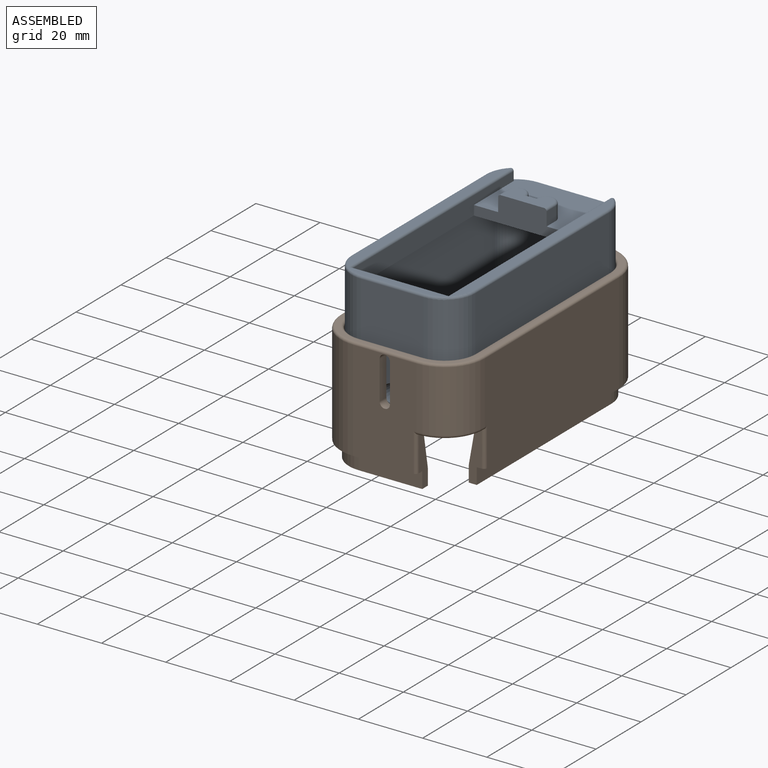
[diagram: assembled view]
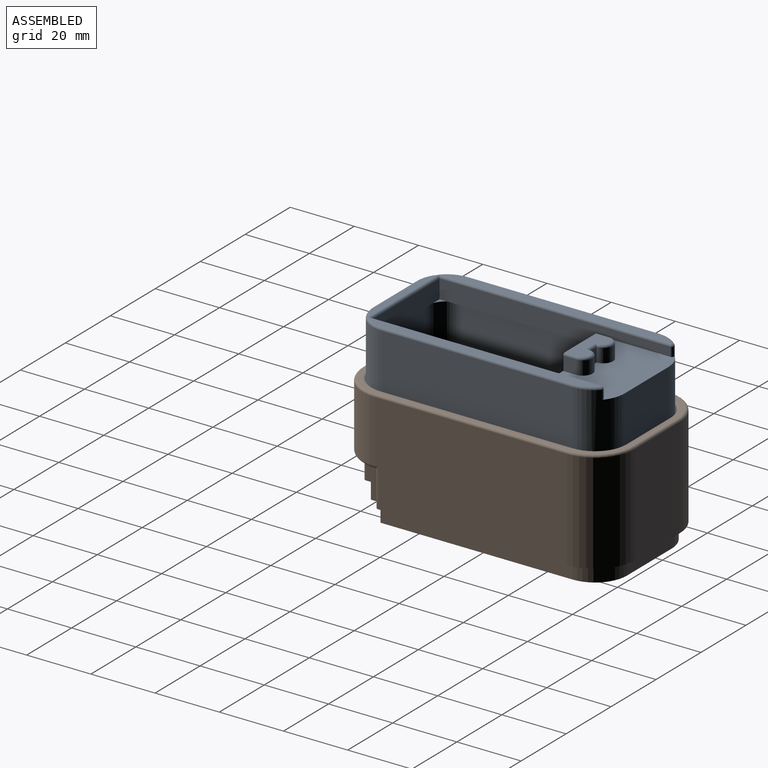
[diagram: assembled view, second angle]
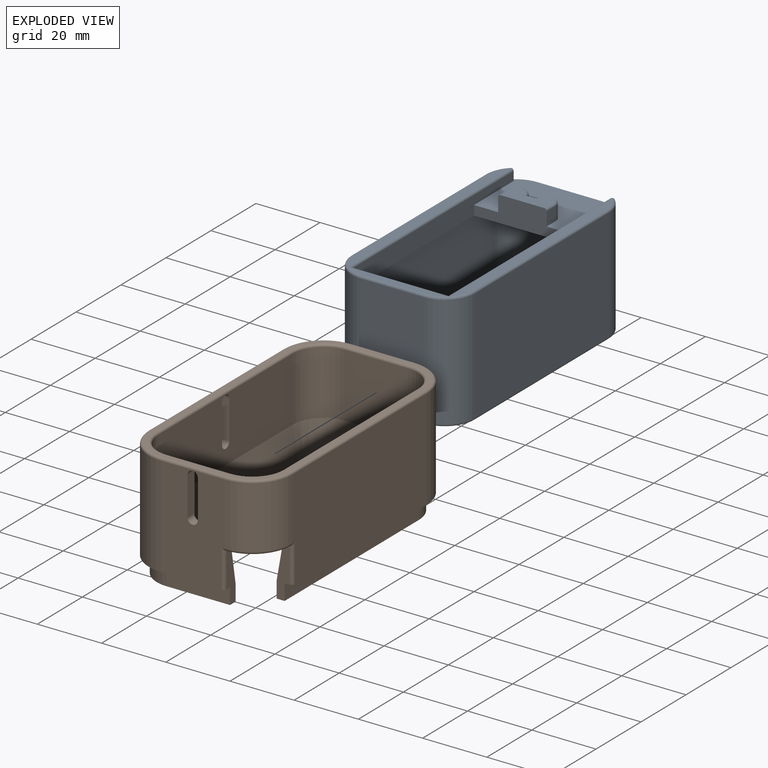
[diagram: exploded view]
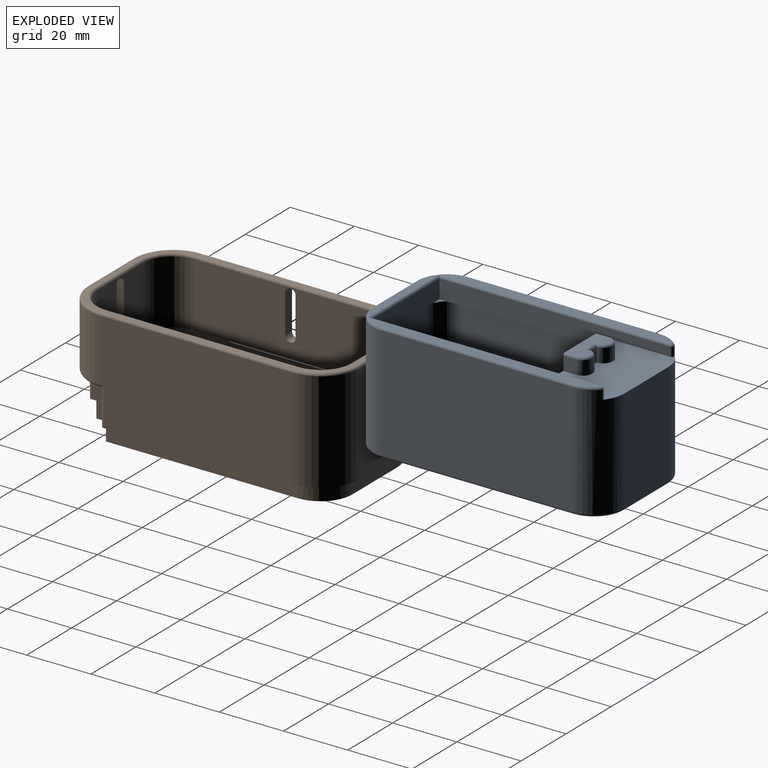
[diagram: exploded view, second angle]
ASSEMBLY  parts=2 mates=2
PART A: 70 faces, bbox 40.1x80.1x38 mm
  f0: plane 72.14x2.7mm, normal (0,0,1), area 184.2mm2, adj f53,f61,f62,f63
  f1: plane 30.64x2mm, normal (0,0,1), area 54.2mm2, adj f52,f63,f64,f65
  f2: plane 59.5x35mm, normal (-1,0,0), area 2057.9mm2, adj f5,f6,f40,f43,f66
  f3: plane 35x19.5mm, normal (0,-1,0), area 657.4mm2, adj f6,f7,f36,f46,f64
  f4: plane 59.5x35mm, normal (1,0,0), area 2082.5mm2, adj f7,f8,f50,f62
  f5: cylinder r=9.5mm len=35mm, axis (0,0,-1), area 502.3mm2, adj f2,f13,f14,f45,f67,f69
  f6: cylinder r=9.5mm len=35mm, axis (0,0,-1), area 522.3mm2, adj f2,f3,f44,f65
  f7: cylinder r=9.5mm len=35mm, axis (0,0,-1), area 522.3mm2, adj f3,f4,f48,f63
  f8: cylinder r=9.5mm len=35mm, axis (0,0,-1), area 502.3mm2, adj f4,f13,f14,f49,f59,f61
  f9: plane 71.82x5.75mm, normal (1,0,0), area 360.7mm2, adj f11,f13,f24,f29,f33,f51,f69
  f10: plane 71.82x5.75mm, normal (-1,0,0), area 360.7mm2, adj f11,f13,f24,f29,f32,f53,f59
  f11: plane 30.1x5.75mm, normal (0,1,0), area 173.1mm2, adj f9,f10,f12,f32,f33,f52
  f12: plane 24.5x0.5mm, normal (0,0,-1), area 11.4mm2, adj f11,f19,f20,f21
  f13: plane 32.64x20.6mm, normal (0,0,1), area 527mm2, adj f5,f8,f9,f10,f14,f25,f26,f27
  f14: plane 32.25x19.5mm, normal (0,1,0), area 628.9mm2, adj f5,f8,f13,f47
  f15: cylinder r=6.5mm len=30mm, axis (0,0,-1), area 306.3mm2, adj f16,f22,f23,f24
  f16: plane 30x19.5mm, normal (0,-1,0), area 585mm2, adj f15,f17,f23,f24
  f17: cylinder r=6.5mm len=30mm, axis (0,0,-1), area 306.3mm2, adj f16,f18,f23,f24
  f18: plane 59.5x30mm, normal (-1,0,0), area 1785mm2, adj f17,f19,f23,f24
  f19: cylinder r=6.5mm len=30mm, axis (0,0,-1), area 306.3mm2, adj f12,f18,f20,f23,f24,f32
  f20: plane 30x19.5mm, normal (0,1,0), area 534.7mm2, adj f12,f19,f21,f23,f34
  f21: cylinder r=6.5mm len=30mm, axis (0,0,-1), area 306.3mm2, adj f12,f20,f22,f23,f24,f33
  f22: plane 59.5x30mm, normal (1,0,0), area 1734.7mm2, adj f15,f21,f23,f24,f38
  f23: plane 77x37mm, normal (0,0,-1), area 463.3mm2, adj f15,f16,f17,f18,f19,f20,f21,f22
  f24: plane 69.76x32.5mm, normal (0,0,-1), area 676.2mm2, adj f9,f10,f15,f16,f17,f18,f19,f21
  f25: cylinder r=3mm len=6mm, axis (0,0,-1), area 40.1mm2, adj f13,f26,f30,f55
  f26: plane 4.25x3.1mm, normal (0,1,0), area 13.2mm2, adj f13,f25,f27,f56
  f27: cylinder r=3mm len=6mm, axis (0,0,-1), area 40.1mm2, adj f13,f26,f28,f57
  f28: plane 4.25x4mm, normal (-1,0,0), area 17mm2, adj f13,f27,f29,f58
  f29: plane 30.1x8mm, normal (0,-1,0), area 165.6mm2, adj f9,f10,f13,f24,f28,f30,f31,f54
  f30: plane 4.25x4mm, normal (1,0,0), area 17mm2, adj f13,f25,f29,f54
  f31: plane 13.6x6.25mm, normal (0,0,1), area 66.8mm2, adj f29,f54,f55,f56,f57,f58
  f32: plane 2.8x2.24mm, normal (0,0,1), area 2.5mm2, adj f10,f11,f19
  f33: plane 2.8x2.24mm, normal (0,0,1), area 2.5mm2, adj f9,f11,f21
  f34: cylinder r=4mm len=8mm, axis (0,-1,0), area 125.7mm2, adj f20,f35
  f35: plane 8x8mm, normal (0,1,0), area 50.3mm2, adj f34
  f36: cone r=2.82mm half-angle=5deg, axis (0,-1,0), area 111.2mm2, adj f3,f37
  f37: plane 4.43x4.43mm, normal (0,-1,0), area 15.4mm2, adj f36
  f38: cylinder r=4mm len=8mm, axis (-1,0,0), area 125.7mm2, adj f22,f39
  f39: plane 8x8mm, normal (1,0,0), area 50.3mm2, adj f38
  f40: cone r=2.8mm half-angle=5deg, axis (-1,0,0), area 110.1mm2, adj f2,f41
  f41: plane 4.38x4.38mm, normal (-1,0,0), area 15mm2, adj f40
  f42: plane 72.14x2.7mm, normal (0,0,1), area 184.2mm2, adj f51,f65,f66,f67
  f43: cylinder r=0.75mm len=59.5mm, axis (0,-1,0), area 70.1mm2, adj f2,f23,f44,f45
  f44: torus R=8.75mm, axis (0,0,1), area 17.1mm2, adj f6,f23,f43,f46
  f45: torus R=8.75mm, axis (0,0,1), area 17.1mm2, adj f5,f23,f43,f47
  f46: cylinder r=0.75mm len=19.5mm, axis (1,0,0), area 23mm2, adj f3,f23,f44,f48
  f47: cylinder r=0.75mm len=19.5mm, axis (-1,0,0), area 23mm2, adj f14,f23,f45,f49
  f48: torus R=8.75mm, axis (0,0,1), area 17.1mm2, adj f7,f23,f46,f50
  f49: torus R=8.75mm, axis (0,0,1), area 17.1mm2, adj f8,f23,f47,f50
  f50: cylinder r=0.75mm len=59.5mm, axis (0,1,0), area 70.1mm2, adj f4,f23,f48,f49
  f51: cylinder r=0.75mm len=72.44mm, axis (0,-1,0), area 84.9mm2, adj f9,f42,f52,f65,f68
  f52: cylinder r=0.75mm len=31.34mm, axis (1,0,0), area 36mm2, adj f1,f11,f51,f53,f63,f65
  f53: cylinder r=0.75mm len=72.44mm, axis (0,1,0), area 84.9mm2, adj f0,f10,f52,f60,f63
  f54: cylinder r=0.75mm len=4mm, axis (0,-1,0), area 4.7mm2, adj f29,f30,f31,f55
  f55: torus R=2.25mm, axis (0,0,1), area 10.4mm2, adj f25,f31,f54,f56
  f56: cylinder r=0.75mm len=4.86mm, axis (1,0,0), area 4.4mm2, adj f26,f31,f55,f57
  f57: torus R=2.25mm, axis (0,0,1), area 10.4mm2, adj f27,f31,f56,f58
  f58: cylinder r=0.75mm len=4mm, axis (0,1,0), area 4.7mm2, adj f28,f29,f31,f57
  f59: cylinder r=0.75mm len=2.75mm, axis (0,0,-1), area 4.8mm2, adj f8,f10,f13,f60
  f60: sphere r=0.75mm, area 1.3mm2, adj f53,f59,f61
  f61: torus R=8.75mm, axis (0,0,1), area 8.8mm2, adj f0,f8,f60,f62
  f62: cylinder r=0.75mm len=59.5mm, axis (0,-1,0), area 70.1mm2, adj f0,f4,f61,f63
  f63: torus R=8.75mm, axis (0,0,1), area 17mm2, adj f0,f1,f7,f52,f53,f62,f64
  f64: cylinder r=0.75mm len=19.5mm, axis (-1,0,0), area 23mm2, adj f1,f3,f63,f65
  f65: torus R=8.75mm, axis (0,0,1), area 17mm2, adj f1,f6,f42,f51,f52,f64,f66
  f66: cylinder r=0.75mm len=59.5mm, axis (0,1,0), area 70.1mm2, adj f2,f42,f65,f67
  f67: torus R=8.75mm, axis (0,0,1), area 8.8mm2, adj f5,f42,f66,f68
  f68: sphere r=0.75mm, area 1.3mm2, adj f51,f67,f69
  f69: cylinder r=0.75mm len=2.75mm, axis (0,0,-1), area 4.8mm2, adj f5,f9,f13,f68
PART B: 73 faces, bbox 46.9x86.9x37 mm
  f0: plane 79.8x39.8mm, normal (0,0,-1), area 501.1mm2, adj f5,f6,f7,f8,f9,f10,f11,f12
  f1: cylinder r=12.5mm len=19.25mm, axis (0,0,-1), area 378mm2, adj f4,f30,f60,f70
  f2: cone r=7.5mm half-angle=10deg, axis (0,0,1), area 5.2mm2, adj f24,f34,f36,f66
  f3: plane 19.91x19.8mm, normal (0,1,0), area 347.7mm2, adj f24,f25,f36,f41,f42,f43,f44,f55
  f4: plane 31.25x19.8mm, normal (0,-1,0), area 560.3mm2, adj f1,f19,f29,f41,f42,f43,f44,f58
  f5: plane 19.8x5mm, normal (0,-1,0), area 99mm2, adj f0,f18,f19,f67
  f6: plane 59.8x5mm, normal (1,0,0), area 299mm2, adj f0,f7,f19,f65
  f7: cylinder r=10mm len=10mm, axis (0,0,-1), area 78.5mm2, adj f0,f6,f8,f19
  f8: plane 19.8x5mm, normal (0,1,0), area 99mm2, adj f0,f7,f9,f19
  f9: cylinder r=10mm len=10mm, axis (0,0,-1), area 78.5mm2, adj f0,f8,f10,f19
  f10: plane 59.8x5mm, normal (-1,0,0), area 299mm2, adj f0,f9,f18,f19
  f11: cylinder r=7.5mm len=7.5mm, axis (0,0,-1), area 58.9mm2, adj f0,f12,f17,f39
  f12: plane 19.8x5mm, normal (0,-1,0), area 99mm2, adj f0,f11,f13,f37
  f13: cylinder r=7.5mm len=7.5mm, axis (0,0,-1), area 58.9mm2, adj f0,f12,f14,f35
  f14: plane 59.8x5mm, normal (-1,0,0), area 299mm2, adj f0,f13,f34,f65
  f15: plane 19.8x5mm, normal (0,1,0), area 99mm2, adj f0,f16,f36,f67
  f16: cylinder r=7.5mm len=7.5mm, axis (0,0,-1), area 58.9mm2, adj f0,f15,f17,f38
  f17: plane 59.8x5mm, normal (1,0,0), area 299mm2, adj f0,f11,f16,f40
  f18: cylinder r=10mm len=10mm, axis (0,0,-1), area 78.5mm2, adj f0,f5,f10,f19
  f19: plane 84.8x44.8mm, normal (0,0,-1), area 530.1mm2, adj f4,f5,f6,f7,f8,f9,f10,f18
  f20: cylinder r=9.5mm len=19.91mm, axis (0,0,-1), area 297.1mm2, adj f21,f32,f39,f52
  f21: plane 19.91x19.8mm, normal (0,-1,0), area 394.2mm2, adj f20,f22,f37,f50
  f22: cylinder r=9.5mm len=19.91mm, axis (0,0,-1), area 297.1mm2, adj f21,f23,f35,f49
  f23: plane 59.8x19.91mm, normal (-1,0,0), area 1190.5mm2, adj f22,f24,f34,f51
  f24: cylinder r=9.5mm len=19.91mm, axis (0,0,-1), area 297.1mm2, adj f2,f3,f23,f53
  f25: cylinder r=9.5mm len=19.91mm, axis (0,0,-1), area 297.1mm2, adj f3,f32,f38,f56
  f26: plane 31.25x19.8mm, normal (0,1,0), area 618.7mm2, adj f19,f27,f31,f63
  f27: cylinder r=12.5mm len=31.25mm, axis (0,0,-1), area 613.6mm2, adj f19,f26,f28,f61
  f28: plane 59.8x31.25mm, normal (-1,0,0), area 1822.3mm2, adj f19,f27,f29,f45,f46,f47,f48,f59
  f29: cylinder r=12.5mm len=31.25mm, axis (0,0,-1), area 613.6mm2, adj f4,f19,f28,f57
  f30: plane 59.8x31.25mm, normal (1,0,0), area 1856.8mm2, adj f1,f19,f31,f62,f71,f72
  f31: cylinder r=12.5mm len=31.25mm, axis (0,0,-1), area 613.6mm2, adj f19,f26,f30,f64
  f32: plane 59.8x19.91mm, normal (1,0,0), area 1144mm2, adj f20,f25,f40,f45,f46,f47,f48,f54
  f33: plane 83.3x43.3mm, normal (0,0,1), area 342.5mm2, adj f49,f50,f51,f52,f53,f54,f55,f56
  f34: plane 59.8x11.34mm, normal (-0.98,0,0.17), area 688.7mm2, adj f2,f14,f23,f35,f65
  f35: cone r=7.5mm half-angle=10deg, axis (0,0,1), area 153.8mm2, adj f13,f22,f34,f37
  f36: plane 19.8x11.34mm, normal (0,0.98,0.17), area 228mm2, adj f2,f3,f15,f38,f67
  f37: plane 19.8x11.34mm, normal (0,-0.98,0.17), area 228mm2, adj f12,f21,f35,f39
  f38: cone r=7.5mm half-angle=10deg, axis (0,0,1), area 153.8mm2, adj f16,f25,f36,f40
  f39: cone r=7.5mm half-angle=10deg, axis (0,0,1), area 153.8mm2, adj f11,f20,f37,f40
  f40: plane 59.8x11.34mm, normal (0.98,0,0.17), area 688.7mm2, adj f17,f32,f38,f39
  f41: plane 12x3mm, normal (1,0,0), area 36mm2, adj f3,f4,f42,f43
  f42: cylinder r=1.6mm len=3.2mm, axis (0,-1,0), area 15.1mm2, adj f3,f4,f41,f44
  f43: cylinder r=1.6mm len=3.2mm, axis (0,-1,0), area 15.1mm2, adj f3,f4,f41,f44
  f44: plane 12x3mm, normal (-1,0,0), area 36mm2, adj f3,f4,f42,f43
  f45: cylinder r=1.6mm len=3.2mm, axis (-1,0,0), area 15.1mm2, adj f28,f32,f46,f48
  f46: plane 12x3mm, normal (0,-1,0), area 36mm2, adj f28,f32,f45,f47
  f47: cylinder r=1.6mm len=3.2mm, axis (-1,0,0), area 15.1mm2, adj f28,f32,f46,f48
  f48: plane 12x3mm, normal (0,1,0), area 36mm2, adj f28,f32,f45,f47
  f49: torus R=10.25mm, axis (0,0,1), area 18.1mm2, adj f22,f33,f50,f51
  f50: cylinder r=0.75mm len=19.8mm, axis (-1,0,0), area 23.3mm2, adj f21,f33,f49,f52
  f51: cylinder r=0.75mm len=59.8mm, axis (0,1,0), area 70.5mm2, adj f23,f33,f49,f53
  f52: torus R=10.25mm, axis (0,0,1), area 18.1mm2, adj f20,f33,f50,f54
  f53: torus R=10.25mm, axis (0,0,1), area 18.1mm2, adj f24,f33,f51,f55
  f54: cylinder r=0.75mm len=59.8mm, axis (0,-1,0), area 70.5mm2, adj f32,f33,f52,f56
  f55: cylinder r=0.75mm len=19.8mm, axis (1,0,0), area 23.3mm2, adj f3,f33,f53,f56
  f56: torus R=10.25mm, axis (0,0,1), area 18.1mm2, adj f25,f33,f54,f55
  f57: torus R=11.75mm, axis (0,0,1), area 22.6mm2, adj f29,f33,f58,f59
  f58: cylinder r=0.75mm len=19.8mm, axis (-1,0,0), area 23.3mm2, adj f4,f33,f57,f60
  f59: cylinder r=0.75mm len=59.8mm, axis (0,1,0), area 70.5mm2, adj f28,f33,f57,f61
  f60: torus R=11.75mm, axis (0,0,1), area 22.6mm2, adj f1,f33,f58,f62
  f61: torus R=11.75mm, axis (0,0,1), area 22.6mm2, adj f27,f33,f59,f63
  f62: cylinder r=0.75mm len=59.8mm, axis (0,-1,0), area 70.5mm2, adj f30,f33,f60,f64
  f63: cylinder r=0.75mm len=19.8mm, axis (1,0,0), area 23.3mm2, adj f26,f33,f61,f64
  f64: torus R=11.75mm, axis (0,0,1), area 22.6mm2, adj f31,f33,f62,f63
  f65: plane 16x4mm, normal (0,-1,0), area 45.8mm2, adj f0,f6,f14,f19,f34,f66,f72
  f66: plane 11.5x11.5mm, normal (0,0,-1), area 33.9mm2, adj f2,f65,f67,f70
  f67: plane 16x4mm, normal (1,0,0), area 45.8mm2, adj f0,f5,f15,f19,f36,f66,f68
  f68: cylinder r=1mm len=12mm, axis (0,0,1), area 17.8mm2, adj f4,f19,f67,f69
  f69: cylinder r=1mm len=1mm, axis (1,0,0), area 0.6mm2, adj f4,f68,f70
  f70: torus R=11.5mm, axis (0,0,-1), area 29.9mm2, adj f1,f66,f69,f71
  f71: cylinder r=1mm len=1mm, axis (0,1,0), area 0.6mm2, adj f30,f70,f72
  f72: cylinder r=1mm len=12mm, axis (0,0,-1), area 17.8mm2, adj f19,f30,f65,f71
PLACE A t=(-13.29,-19.29,23.51)mm
PLACE B t=(-14.09,-19.79,5.49)mm fixed
MATE planar A.f3 <-> B.f3  axis (0,-1,0) through (5.96,-19.29,42.23)mm
MATE planar A.f4 <-> B.f23  axis (1,0,0) through (25.21,19.96,41.76)mm
